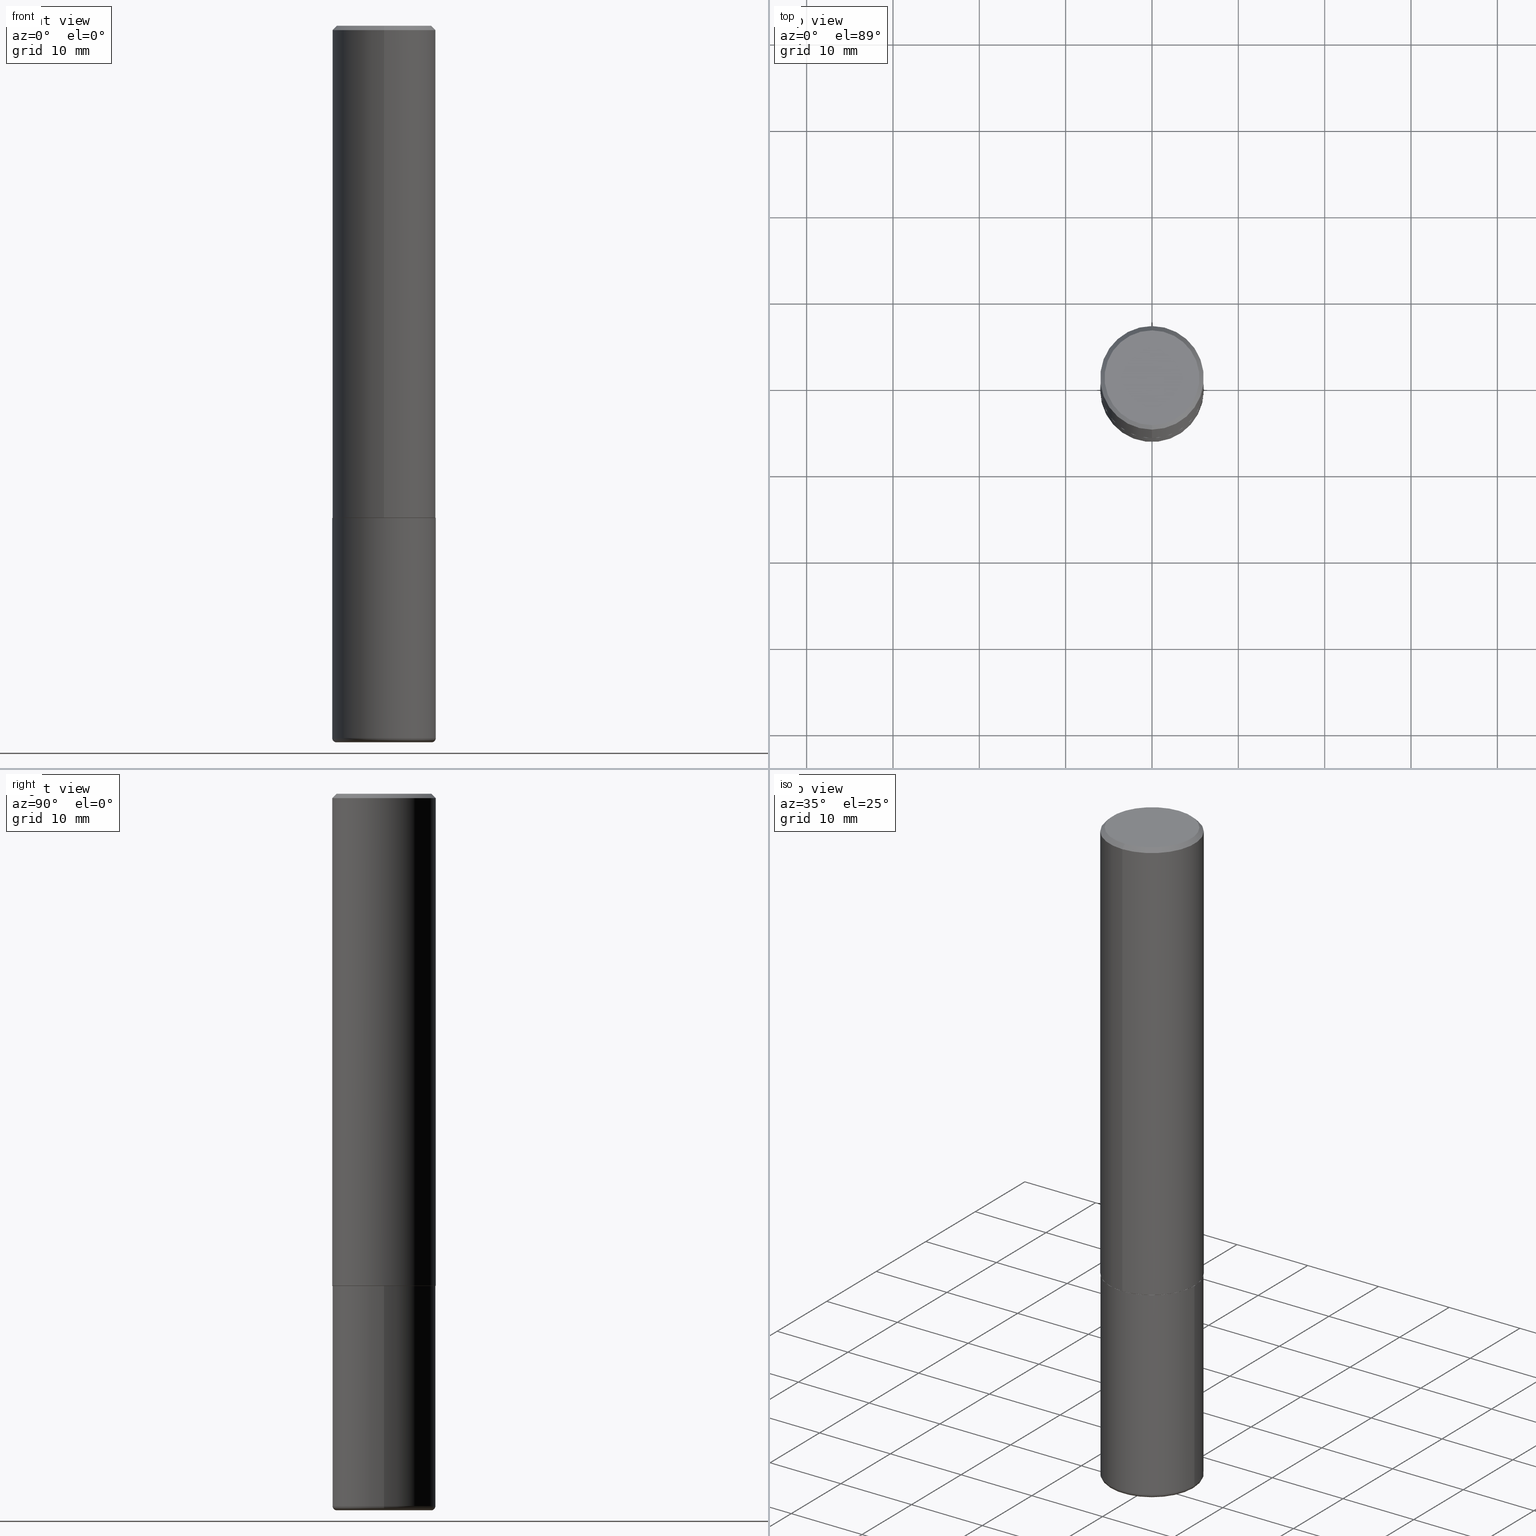
[diagram: canonical four-view strip — front | top / right | iso, engineering-drawing reading convention]
A machine part, canonical four-view strip (front | top / right | iso — engineering-drawing reading convention). The complete STEP part file that produces these views, byte-faithful:
ISO-10303-21;
HEADER;
FILE_DESCRIPTION (( 'STEP AP203' ),
    '1' );
FILE_NAME ('46909.STEP',
    '2024-03-05T07:27:38',
    ( '' ),
    ( '' ),
    'SwSTEP 2.0',
    'SolidWorks 2023',
    '' );
FILE_SCHEMA (( 'CONFIG_CONTROL_DESIGN' ));
ENDSEC;

DATA;
#1 = ORIENTED_EDGE ( 'NONE', *, *, #309, .T. ) ;
#2 = ORIENTED_EDGE ( 'NONE', *, *, #5, .F. ) ;
#3 = AXIS2_PLACEMENT_3D ( 'NONE', #175, #43, #151 ) ;
#4 = VERTEX_POINT ( 'NONE', #67 ) ;
#5 = EDGE_CURVE ( 'NONE', #170, #102, #379, .T. ) ;
#6 = ORIENTED_EDGE ( 'NONE', *, *, #231, .F. ) ;
#7 = EDGE_LOOP ( 'NONE', ( #360, #172, #267, #169 ) ) ;
#8 = PRODUCT_RELATED_PRODUCT_CATEGORY ( 'detail', '', ( #232 ) ) ;
#9 = AXIS2_PLACEMENT_3D ( 'NONE', #150, #108, #176 ) ;
#10 = LINE ( 'NONE', #142, #301 ) ;
#11 = DIRECTION ( 'NONE',  ( -1.000000000000000000, 6.982962677686265922E-15, -4.876176775795935793E-29 ) ) ;
#12 = MECHANICAL_CONTEXT ( 'NONE', #114, 'mechanical' ) ;
#13 = CARTESIAN_POINT ( 'NONE',  ( 7.942882682489324976E-29, -1.134033138856253841E-14, -3.248000000000000220 ) ) ;
#14 = FACE_OUTER_BOUND ( 'NONE', #134, .T. ) ;
#15 = AXIS2_PLACEMENT_3D ( 'NONE', #242, #313, #16 ) ;
#16 = DIRECTION ( 'NONE',  ( 1.000000000000000000, -6.982962677686269077E-15, 0.000000000000000000 ) ) ;
#17 = PERSON_AND_ORGANIZATION_ROLE ( 'design_owner' ) ;
#18 = DIRECTION ( 'NONE',  ( -6.982962677686265922E-15, -1.000000000000000000, 3.484849272499618535E-15 ) ) ;
#19 = CARTESIAN_POINT ( 'NONE',  ( 1.671196514507810409E-15, 0.2351999999999921653, -2.244100000000000872 ) ) ;
#20 = VECTOR ( 'NONE', #120, 39.37007874015748143 ) ;
#21 = APPROVAL_PERSON_ORGANIZATION ( #279, #31, #247 ) ;
#22 = DATE_TIME_ROLE ( 'classification_date' ) ;
#23 = CARTESIAN_POINT ( 'NONE',  ( 5.495819205382747907E-29, -7.816865403143895871E-15, -2.243100000000000094 ) ) ;
#24 = DIRECTION ( 'NONE',  ( 1.000000000000000000, -6.982962677686265133E-15, 0.000000000000000000 ) ) ;
#25 = PERSON_AND_ORGANIZATION ( #218, #190 ) ;
#26 = CIRCLE ( 'NONE', #327, 0.2361999999999999933 ) ;
#27 = PERSON_AND_ORGANIZATION_ROLE ( 'creator' ) ;
#28 = ORIENTED_EDGE ( 'NONE', *, *, #382, .F. ) ;
#29 = EDGE_CURVE ( 'NONE', #68, #139, #157, .T. ) ;
#30 = ORIENTED_EDGE ( 'NONE', *, *, #382, .T. ) ;
#31 = APPROVAL ( #409, 'UNSPECIFIED' ) ;
#32 = ORIENTED_EDGE ( 'NONE', *, *, #45, .F. ) ;
#33 = ORIENTED_EDGE ( 'NONE', *, *, #295, .T. ) ;
#34 = EDGE_CURVE ( 'NONE', #139, #416, #203, .T. ) ;
#35 = CARTESIAN_POINT ( 'NONE',  ( -0.2164999999999999980, -9.802006365641922115E-15, -3.248000000000000220 ) ) ;
#36 = DIRECTION ( 'NONE',  ( -6.982962677686265922E-15, -1.000000000000000000, 3.484849272499618930E-15 ) ) ;
#37 = CARTESIAN_POINT ( 'NONE',  ( -1.620449627073635276E-15, -0.2362000000000001043, -0.01999999999999925449 ) ) ;
#38 = AXIS2_PLACEMENT_3D ( 'NONE', #320, #154, #159 ) ;
#39 = DIRECTION ( 'NONE',  ( -2.445468806185136597E-29, 3.491481338843145583E-15, 1.000000000000000000 ) ) ;
#40 = EDGE_CURVE ( 'NONE', #68, #140, #417, .T. ) ;
#41 = CARTESIAN_POINT ( 'NONE',  ( 7.942882682489324976E-29, -1.134033138856253841E-14, -3.248000000000000220 ) ) ;
#42 = DIRECTION ( 'NONE',  ( -4.937700262165812586E-15, -0.7071067811867262076, 0.7071067811863689379 ) ) ;
#43 = DIRECTION ( 'NONE',  ( -2.450099953360415403E-29, 3.484849272499618930E-15, 1.000000000000000000 ) ) ;
#44 = DIRECTION ( 'NONE',  ( -2.450099953360415403E-29, 3.484849272499618930E-15, 1.000000000000000000 ) ) ;
#45 = EDGE_CURVE ( 'NONE', #64, #197, #113, .T. ) ;
#46 = CARTESIAN_POINT ( 'NONE',  ( -0.2361999999999999933, 1.678301941865356591E-15, -1.161852468318208757E-29 ) ) ;
#47 = AXIS2_PLACEMENT_3D ( 'NONE', #315, #123, #252 ) ;
#48 = VECTOR ( 'NONE', #177, 39.37007874015748143 ) ;
#49 = PERSON_AND_ORGANIZATION ( #218, #190 ) ;
#50 = EDGE_CURVE ( 'NONE', #336, #170, #146, .T. ) ;
#51 = CYLINDRICAL_SURFACE ( 'NONE', #55, 0.2361999999999999933 ) ;
#52 = DIRECTION ( 'NONE',  ( 1.000000000000000000, -6.982962677686266711E-15, 4.876176775795936353E-29 ) ) ;
#53 = ADVANCED_FACE ( 'NONE', ( #204 ), #149, .T. ) ;
#54 = DIRECTION ( 'NONE',  ( 2.450099953360414843E-29, -3.484849272499618930E-15, -1.000000000000000000 ) ) ;
#55 = AXIS2_PLACEMENT_3D ( 'NONE', #219, #349, #217 ) ;
#56 = APPROVAL ( #318, 'UNSPECIFIED' ) ;
#57 = COORDINATED_UNIVERSAL_TIME_OFFSET ( 5, 0, .BEHIND. ) ;
#58 = CARTESIAN_POINT ( 'NONE',  ( -2.474856915300181060E-45, 3.520061828088122209E-31, 1.010104470189393763E-16 ) ) ;
#59 = CALENDAR_DATE ( 2024, 5, 3 ) ;
#60 = ADVANCED_FACE ( 'NONE', ( #370 ), #82, .T. ) ;
#61 = ORIENTED_EDGE ( 'NONE', *, *, #40, .T. ) ;
#62 = CIRCLE ( 'NONE', #121, 0.2351999999999999924 ) ;
#63 = ORIENTED_EDGE ( 'NONE', *, *, #110, .T. ) ;
#64 = VERTEX_POINT ( 'NONE', #408 ) ;
#65 = DIRECTION ( 'NONE',  ( -2.450099953360415403E-29, 3.484849272499618930E-15, 1.000000000000000000 ) ) ;
#66 = AXIS2_PLACEMENT_3D ( 'NONE', #215, #54, #415 ) ;
#67 = CARTESIAN_POINT ( 'NONE',  ( 0.2362000000000000766, -1.298970717303203651E-14, -3.248000000000000220 ) ) ;
#68 = VERTEX_POINT ( 'NONE', #209 ) ;
#69 = DIRECTION ( 'NONE',  ( -2.450099953360415403E-29, 3.484849272499618930E-15, 1.000000000000000000 ) ) ;
#70 = FACE_OUTER_BOUND ( 'NONE', #229, .T. ) ;
#71 = AXIS2_PLACEMENT_3D ( 'NONE', #307, #44, #300 ) ;
#72 = CC_DESIGN_SECURITY_CLASSIFICATION ( #364, ( #291 ) ) ;
#73 = DIRECTION ( 'NONE',  ( 2.450099953360415403E-29, -3.484849272499618930E-15, -1.000000000000000000 ) ) ;
#74 = CARTESIAN_POINT ( 'NONE',  ( 5.487876547960065873E-29, -7.835233272497903917E-15, -2.244100000000000428 ) ) ;
#75 = CARTESIAN_POINT ( 'NONE',  ( -0.2362000000000000766, -9.662029446697182017E-15, -3.248000000000000220 ) ) ;
#76 = EDGE_CURVE ( 'NONE', #198, #225, #290, .T. ) ;
#77 =( NAMED_UNIT ( * ) PLANE_ANGLE_UNIT ( ) SI_UNIT ( $, .RADIAN. ) );
#78 = CARTESIAN_POINT ( 'NONE',  ( 7.991058417971172834E-29, -1.140911357093774960E-14, -3.267700000000000937 ) ) ;
#79 = DIRECTION ( 'NONE',  ( 0.000000000000000000, 0.000000000000000000, 1.000000000000000000 ) ) ;
#80 = CLOSED_SHELL ( 'NONE', ( #205, #321, #132, #292, #53, #277 ) ) ;
#81 = CARTESIAN_POINT ( 'NONE',  ( 1.579546157692633424E-15, 0.2161999999999999478, -6.524139656954780766E-16 ) ) ;
#82 = CONICAL_SURFACE ( 'NONE', #226, 0.2362000000000000210, 0.7853981633974461696 ) ;
#83 = CALENDAR_DATE ( 2024, 5, 3 ) ;
#84 = CYLINDRICAL_SURFACE ( 'NONE', #105, 0.2362000000000001598 ) ;
#85 = FACE_OUTER_BOUND ( 'NONE', #164, .T. ) ;
#86 = ORIENTED_EDGE ( 'NONE', *, *, #372, .F. ) ;
#87 = APPROVAL_DATE_TIME ( #194, #31 ) ;
#88 = DIRECTION ( 'NONE',  ( -2.445468806185136597E-29, 3.491481338843145583E-15, 1.000000000000000000 ) ) ;
#89 = VECTOR ( 'NONE', #304, 39.37007874015748143 ) ;
#90 = APPROVAL_PERSON_ORGANIZATION ( #91, #56, #191 ) ;
#91 = PERSON_AND_ORGANIZATION ( #218, #190 ) ;
#92 = DIRECTION ( 'NONE',  ( -2.450099953360415403E-29, 3.484849272499618930E-15, 1.000000000000000000 ) ) ;
#93 = ORIENTED_EDGE ( 'NONE', *, *, #5, .T. ) ;
#94 = EDGE_CURVE ( 'NONE', #4, #139, #26, .T. ) ;
#95 = ORIENTED_EDGE ( 'NONE', *, *, #372, .T. ) ;
#96 = PERSON_AND_ORGANIZATION_ROLE ( 'creator' ) ;
#97 = EDGE_LOOP ( 'NONE', ( #299, #263 ) ) ;
#98 = AXIS2_PLACEMENT_3D ( 'NONE', #74, #143, #148 ) ;
#99 = ADVANCED_FACE ( 'NONE', ( #278 ), #117, .F. ) ;
#100 = ORIENTED_EDGE ( 'NONE', *, *, #94, .F. ) ;
#101 = MANIFOLD_SOLID_BREP ( 'Body-Move/Copy2[1]', #80 ) ;
#102 = VERTEX_POINT ( 'NONE', #368 ) ;
#103 = MANIFOLD_SOLID_BREP ( 'Body-Move/Copy2[2]', #326 ) ;
#104 = ORIENTED_EDGE ( 'NONE', *, *, #40, .F. ) ;
#105 = AXIS2_PLACEMENT_3D ( 'NONE', #351, #92, #410 ) ;
#106 = LOCAL_TIME ( 2, 27, 38.00000000000000000, #124 ) ;
#107 = ORIENTED_EDGE ( 'NONE', *, *, #160, .F. ) ;
#108 = DIRECTION ( 'NONE',  ( 2.450099953360415403E-29, -3.484849272499618930E-15, -1.000000000000000000 ) ) ;
#109 = CARTESIAN_POINT ( 'NONE',  ( 0.2164999999999999980, -1.285214280828161572E-14, -3.248000000000000220 ) ) ;
#110 = EDGE_CURVE ( 'NONE', #416, #297, #386, .T. ) ;
#111 = CARTESIAN_POINT ( 'NONE',  ( 4.900199906720849654E-31, -6.969698544999262955E-17, -0.02000000000000007674 ) ) ;
#112 = CARTESIAN_POINT ( 'NONE',  ( 0.2361999999999999933, -1.649375784469496131E-15, 1.151752954443000088E-29 ) ) ;
#113 = CIRCLE ( 'NONE', #141, 0.2362000000000000210 ) ;
#114 = APPLICATION_CONTEXT ( 'configuration controlled 3d designs of mechanical parts and assemblies' ) ;
#115 = DIRECTION ( 'NONE',  ( 2.438088387897960049E-29, -3.491481338843145188E-15, -1.000000000000000000 ) ) ;
#116 = LENGTH_MEASURE_WITH_UNIT ( LENGTH_MEASURE( 0.02539999999999999897 ), #401 );
#117 = PLANE ( 'NONE',  #200 ) ;
#118 = ADVANCED_FACE ( 'NONE', ( #14 ), #241, .T. ) ;
#119 = CARTESIAN_POINT ( 'NONE',  ( 4.900199906720849654E-31, -6.969698544999262955E-17, -0.02000000000000007674 ) ) ;
#120 = DIRECTION ( 'NONE',  ( 5.024295867789349022E-15, 0.7071067811867310926, 0.7071067811863640529 ) ) ;
#121 = AXIS2_PLACEMENT_3D ( 'NONE', #254, #283, #412 ) ;
#122 = EDGE_LOOP ( 'NONE', ( #167, #359 ) ) ;
#123 = DIRECTION ( 'NONE',  ( -2.450099953360415403E-29, 3.484849272499618930E-15, 1.000000000000000000 ) ) ;
#124 = COORDINATED_UNIVERSAL_TIME_OFFSET ( 5, 0, .BEHIND. ) ;
#125 = CYLINDRICAL_SURFACE ( 'NONE', #174, 0.2361999999999999933 ) ;
#126 = ORIENTED_EDGE ( 'NONE', *, *, #262, .T. ) ;
#127 = DATE_AND_TIME ( #162, #106 ) ;
#128 = DIRECTION ( 'NONE',  ( -2.450099953360415403E-29, 3.484849272499618930E-15, 1.000000000000000000 ) ) ;
#129 = VECTOR ( 'NONE', #287, 39.37007874015748143 ) ;
#130 = EDGE_CURVE ( 'NONE', #198, #64, #10, .T. ) ;
#131 = CC_DESIGN_APPROVAL ( #31, ( #390 ) ) ;
#132 = ADVANCED_FACE ( 'NONE', ( #245 ), #272, .F. ) ;
#133 = APPROVAL_STATUS ( 'not_yet_approved' ) ;
#134 = EDGE_LOOP ( 'NONE', ( #138, #126, #363, #32 ) ) ;
#135 = ORIENTED_EDGE ( 'NONE', *, *, #228, .T. ) ;
#136 = VECTOR ( 'NONE', #42, 39.37007874015748143 ) ;
#137 = CC_DESIGN_PERSON_AND_ORGANIZATION_ASSIGNMENT ( #49, #17, ( #232 ) ) ;
#138 = ORIENTED_EDGE ( 'NONE', *, *, #309, .F. ) ;
#139 = VERTEX_POINT ( 'NONE', #75 ) ;
#140 = VERTEX_POINT ( 'NONE', #212 ) ;
#141 = AXIS2_PLACEMENT_3D ( 'NONE', #111, #69, #402 ) ;
#142 = CARTESIAN_POINT ( 'NONE',  ( 1.649375784469496722E-15, 0.2361999999999999655, -0.02000000000000090247 ) ) ;
#143 = DIRECTION ( 'NONE',  ( -2.445468806185136597E-29, 3.491481338843145583E-15, 1.000000000000000000 ) ) ;
#144 = DIRECTION ( 'NONE',  ( -2.445468806185136597E-29, 3.491481338843145583E-15, 1.000000000000000000 ) ) ;
#145 = CARTESIAN_POINT ( 'NONE',  ( -1.649375784469497117E-15, -0.2362000000000001598, 8.231213981644106002E-16 ) ) ;
#146 = LINE ( 'NONE', #375, #136 ) ;
#147 = UNCERTAINTY_MEASURE_WITH_UNIT (LENGTH_MEASURE( 1.000000000000000082E-05 ), #303, 'distance_accuracy_value', 'NONE');
#148 = DIRECTION ( 'NONE',  ( 1.000000000000000000, -6.982962677686269077E-15, 0.000000000000000000 ) ) ;
#149 = TOROIDAL_SURFACE ( 'NONE', #380, 0.2164999999999999980, 0.01970000000000016877 ) ;
#150 = CARTESIAN_POINT ( 'NONE',  ( 4.900199906720849654E-31, -6.969698544999262955E-17, -0.02000000000000007674 ) ) ;
#151 = DIRECTION ( 'NONE',  ( -6.982962677686265133E-15, -1.000000000000000000, 3.484499991918703113E-15 ) ) ;
#152 = DIRECTION ( 'NONE',  ( 4.937700262164536998E-15, 0.7071067811865435759, -0.7071067811865514585 ) ) ;
#153 = APPLICATION_PROTOCOL_DEFINITION ( 'international standard', 'config_control_design', 1994, #329 ) ;
#154 = DIRECTION ( 'NONE',  ( 2.438088387897960049E-29, -3.491481338843145188E-15, -1.000000000000000000 ) ) ;
#155 = ORIENTED_EDGE ( 'NONE', *, *, #50, .F. ) ;
#156 = FACE_OUTER_BOUND ( 'NONE', #357, .T. ) ;
#157 = CIRCLE ( 'NONE', #371, 0.01970000000000016877 ) ;
#158 = PERSON_AND_ORGANIZATION ( #218, #190 ) ;
#159 = DIRECTION ( 'NONE',  ( -1.000000000000000000, 6.982962677686265922E-15, -4.876176775795935793E-29 ) ) ;
#160 = EDGE_CURVE ( 'NONE', #140, #68, #248, .T. ) ;
#161 = CARTESIAN_POINT ( 'NONE',  ( 1.678301941865357577E-15, 0.2362000000000001598, -8.231213981644106002E-16 ) ) ;
#162 = CALENDAR_DATE ( 2024, 5, 3 ) ;
#163 = CC_DESIGN_PERSON_AND_ORGANIZATION_ASSIGNMENT ( #284, #96, ( #291 ) ) ;
#164 = EDGE_LOOP ( 'NONE', ( #93, #1, #86, #237 ) ) ;
#165 = CIRCLE ( 'NONE', #188, 0.2351999999999999924 ) ;
#166 = SECURITY_CLASSIFICATION_LEVEL ( 'unclassified' ) ;
#167 = ORIENTED_EDGE ( 'NONE', *, *, #228, .F. ) ;
#168 = ORIENTED_EDGE ( 'NONE', *, *, #130, .F. ) ;
#169 = ORIENTED_EDGE ( 'NONE', *, *, #45, .T. ) ;
#170 = VERTEX_POINT ( 'NONE', #238 ) ;
#171 = ADVANCED_FACE ( 'NONE', ( #400 ), #221, .T. ) ;
#172 = ORIENTED_EDGE ( 'NONE', *, *, #76, .F. ) ;
#173 = DIRECTION ( 'NONE',  ( 6.982962677686265922E-15, 1.000000000000000000, -3.487819265831411350E-15 ) ) ;
#174 = AXIS2_PLACEMENT_3D ( 'NONE', #385, #388, #52 ) ;
#175 = CARTESIAN_POINT ( 'NONE',  ( 5.498269305336108440E-29, -7.820350252416394661E-15, -2.244099999999999984 ) ) ;
#176 = DIRECTION ( 'NONE',  ( 6.982962677686265922E-15, 1.000000000000000000, -3.487819265831411350E-15 ) ) ;
#177 = DIRECTION ( 'NONE',  ( -2.445468806185136877E-29, 3.491481338843145188E-15, 1.000000000000000000 ) ) ;
#178 = CARTESIAN_POINT ( 'NONE',  ( -2.474856915300181060E-45, 3.520061828088122209E-31, 1.010104470189393763E-16 ) ) ;
#179 = DIRECTION ( 'NONE',  ( -6.982962677686266711E-15, -1.000000000000000000, 3.491481338843145583E-15 ) ) ;
#180 = CARTESIAN_POINT ( 'NONE',  ( 7.991058417971172834E-29, -1.140911357093774960E-14, -3.267700000000000937 ) ) ;
#181 = AXIS2_PLACEMENT_3D ( 'NONE', #23, #413, #189 ) ;
#182 = DIRECTION ( 'NONE',  ( -2.450099953360414843E-29, 3.484849272499618930E-15, 1.000000000000000000 ) ) ;
#183 =( NAMED_UNIT ( * ) SI_UNIT ( $, .STERADIAN. ) SOLID_ANGLE_UNIT ( ) );
#184 = DIRECTION ( 'NONE',  ( -2.450099953360415403E-29, 3.484849272499618930E-15, 1.000000000000000000 ) ) ;
#185 = ADVANCED_FACE ( 'NONE', ( #274 ), #240, .T. ) ;
#186 = DATE_AND_TIME ( #324, #227 ) ;
#187 = LINE ( 'NONE', #161, #129 ) ;
#188 = AXIS2_PLACEMENT_3D ( 'NONE', #316, #128, #258 ) ;
#189 = DIRECTION ( 'NONE',  ( -6.982962677686265922E-15, -1.000000000000000000, 3.469747663417772663E-15 ) ) ;
#190 = ORGANIZATION ( 'UNSPECIFIED', 'UNSPECIFIED', '' ) ;
#191 = APPROVAL_ROLE ( '' ) ;
#192 = PLANE ( 'NONE',  #38 ) ;
#193 = CC_DESIGN_PERSON_AND_ORGANIZATION_ASSIGNMENT ( #325, #251, ( #291 ) ) ;
#194 = DATE_AND_TIME ( #83, #249 ) ;
#195 = AXIS2_PLACEMENT_3D ( 'NONE', #361, #65, #199 ) ;
#196 = AXIS2_PLACEMENT_3D ( 'NONE', #180, #144, #310 ) ;
#197 = VERTEX_POINT ( 'NONE', #285 ) ;
#198 = VERTEX_POINT ( 'NONE', #81 ) ;
#199 = DIRECTION ( 'NONE',  ( -6.982962677686265922E-15, -1.000000000000000000, 3.469747663417772663E-15 ) ) ;
#200 = AXIS2_PLACEMENT_3D ( 'NONE', #275, #182, #36 ) ;
#201 = ADVANCED_FACE ( 'NONE', ( #354 ), #222, .F. ) ;
#202 = ORIENTED_EDGE ( 'NONE', *, *, #302, .T. ) ;
#203 = LINE ( 'NONE', #46, #89 ) ;
#204 = FACE_OUTER_BOUND ( 'NONE', #391, .T. ) ;
#205 = ADVANCED_FACE ( 'NONE', ( #156 ), #51, .T. ) ;
#206 = CIRCLE ( 'NONE', #235, 0.2362000000000000210 ) ;
#207 = DIRECTION ( 'NONE',  ( -2.445468806185136597E-29, 3.491481338843145583E-15, 1.000000000000000000 ) ) ;
#208 =( GEOMETRIC_REPRESENTATION_CONTEXT ( 3 ) GLOBAL_UNCERTAINTY_ASSIGNED_CONTEXT ( ( #147 ) ) GLOBAL_UNIT_ASSIGNED_CONTEXT ( ( #303, #77, #183 ) ) REPRESENTATION_CONTEXT ( 'NONE', 'WORKASPACE' ) );
#209 = CARTESIAN_POINT ( 'NONE',  ( -0.2164999999999999980, -9.766408997357155292E-15, -3.267700000000000937 ) ) ;
#210 = CC_DESIGN_DATE_AND_TIME_ASSIGNMENT ( #127, #414, ( #390 ) ) ;
#211 = FACE_OUTER_BOUND ( 'NONE', #394, .T. ) ;
#212 = CARTESIAN_POINT ( 'NONE',  ( 0.2164999999999999980, -1.292092499065682533E-14, -3.267700000000000937 ) ) ;
#213 = DIRECTION ( 'NONE',  ( -2.445468806185136597E-29, 3.491481338843145583E-15, 1.000000000000000000 ) ) ;
#214 = VECTOR ( 'NONE', #239, 39.37007874015748143 ) ;
#215 = CARTESIAN_POINT ( 'NONE',  ( 1.509716530915770323E-15, 0.2161999999999999478, -7.029191892049475614E-16 ) ) ;
#216 = CARTESIAN_POINT ( 'NONE',  ( -1.642392821791754502E-15, -0.2352000000000078195, -2.244099999999999095 ) ) ;
#217 = DIRECTION ( 'NONE',  ( 1.000000000000000000, -6.982962677686266711E-15, 4.876176775795936353E-29 ) ) ;
#218 = PERSON ( 'UNSPECIFIED', 'UNSPECIFIED', 'UNSPECIFIED', ('UNSPECIFIED'), ('UNSPECIFIED'), ('UNSPECIFIED') ) ;
#219 = CARTESIAN_POINT ( 'NONE',  ( 0.000000000000000000, 0.000000000000000000, 0.000000000000000000 ) ) ;
#220 = COORDINATED_UNIVERSAL_TIME_OFFSET ( 5, 0, .BEHIND. ) ;
#221 = CONICAL_SURFACE ( 'NONE', #9, 0.2362000000000000210, 0.7853981633974461696 ) ;
#222 = PLANE ( 'NONE',  #66 ) ;
#223 = FACE_OUTER_BOUND ( 'NONE', #330, .T. ) ;
#224 = EDGE_LOOP ( 'NONE', ( #293, #255, #265, #230 ) ) ;
#225 = VERTEX_POINT ( 'NONE', #384 ) ;
#226 = AXIS2_PLACEMENT_3D ( 'NONE', #119, #73, #173 ) ;
#227 = LOCAL_TIME ( 2, 27, 38.00000000000000000, #220 ) ;
#228 = EDGE_CURVE ( 'NONE', #336, #253, #62, .T. ) ;
#229 = EDGE_LOOP ( 'NONE', ( #135, #33, #2, #155 ) ) ;
#230 = ORIENTED_EDGE ( 'NONE', *, *, #262, .F. ) ;
#231 = EDGE_CURVE ( 'NONE', #225, #198, #358, .T. ) ;
#232 = PRODUCT ( '46909', '46909', '', ( #12 ) ) ;
#233 = EDGE_LOOP ( 'NONE', ( #288, #63 ) ) ;
#234 = AXIS2_PLACEMENT_3D ( 'NONE', #178, #276, #406 ) ;
#235 = AXIS2_PLACEMENT_3D ( 'NONE', #374, #244, #377 ) ;
#236 = CC_DESIGN_PERSON_AND_ORGANIZATION_ASSIGNMENT ( #25, #27, ( #390 ) ) ;
#237 = ORIENTED_EDGE ( 'NONE', *, *, #331, .F. ) ;
#238 = CARTESIAN_POINT ( 'NONE',  ( -1.649375784469443080E-15, -0.2362000000000081257, -2.243099999999999206 ) ) ;
#239 = DIRECTION ( 'NONE',  ( -2.450099953360415403E-29, 3.484849272499618930E-15, 1.000000000000000000 ) ) ;
#240 = CONICAL_SURFACE ( 'NONE', #47, 0.2351999999999999924, 0.7853981633977044075 ) ;
#241 = CYLINDRICAL_SURFACE ( 'NONE', #71, 0.2362000000000001598 ) ;
#242 = CARTESIAN_POINT ( 'NONE',  ( 5.487876547960065873E-29, -7.835233272497903917E-15, -2.244100000000000428 ) ) ;
#243 = ADVANCED_FACE ( 'NONE', ( #85 ), #84, .T. ) ;
#244 = DIRECTION ( 'NONE',  ( -2.450099953360415403E-29, 3.484849272499618930E-15, 1.000000000000000000 ) ) ;
#245 = FACE_OUTER_BOUND ( 'NONE', #233, .T. ) ;
#246 = CC_DESIGN_DATE_AND_TIME_ASSIGNMENT ( #186, #22, ( #364 ) ) ;
#247 = APPROVAL_ROLE ( '' ) ;
#248 = CIRCLE ( 'NONE', #196, 0.2164999999999999980 ) ;
#249 = LOCAL_TIME ( 2, 27, 38.00000000000000000, #381 ) ;
#250 = CARTESIAN_POINT ( 'NONE',  ( 0.2361999999999999933, -9.484609056967400443E-15, -2.244100000000000428 ) ) ;
#251 = PERSON_AND_ORGANIZATION_ROLE ( 'design_supplier' ) ;
#252 = DIRECTION ( 'NONE',  ( -6.982962677686265133E-15, -1.000000000000000000, 3.484499991918703113E-15 ) ) ;
#253 = VERTEX_POINT ( 'NONE', #352 ) ;
#254 = CARTESIAN_POINT ( 'NONE',  ( 5.498269305336108440E-29, -7.820350252416394661E-15, -2.244099999999999984 ) ) ;
#255 = ORIENTED_EDGE ( 'NONE', *, *, #312, .T. ) ;
#256 = SHAPE_DEFINITION_REPRESENTATION ( #397, #392 ) ;
#257 = AXIS2_PLACEMENT_3D ( 'NONE', #58, #184, #18 ) ;
#258 = DIRECTION ( 'NONE',  ( -6.982962677686265133E-15, -1.000000000000000000, 3.484499991918703113E-15 ) ) ;
#259 = ORIENTED_EDGE ( 'NONE', *, *, #29, .T. ) ;
#260 = CALENDAR_DATE ( 2024, 5, 3 ) ;
#261 = ORIENTED_EDGE ( 'NONE', *, *, #160, .T. ) ;
#262 = EDGE_CURVE ( 'NONE', #102, #170, #317, .T. ) ;
#263 = ORIENTED_EDGE ( 'NONE', *, *, #231, .T. ) ;
#264 = CONICAL_SURFACE ( 'NONE', #3, 0.2351999999999999924, 0.7853981633977044075 ) ;
#265 = ORIENTED_EDGE ( 'NONE', *, *, #50, .T. ) ;
#266 = LOCAL_TIME ( 2, 27, 38.00000000000000000, #411 ) ;
#267 = ORIENTED_EDGE ( 'NONE', *, *, #130, .T. ) ;
#268 = EDGE_LOOP ( 'NONE', ( #6, #395, #95, #168 ) ) ;
#269 = ORIENTED_EDGE ( 'NONE', *, *, #342, .F. ) ;
#270 = AXIS2_PLACEMENT_3D ( 'NONE', #109, #179, #308 ) ;
#271 = AXIS2_PLACEMENT_3D ( 'NONE', #407, #79, #314 ) ;
#272 = PLANE ( 'NONE',  #393 ) ;
#273 = DIRECTION ( 'NONE',  ( -4.851104656540953231E-15, -0.7071067811865484609, -0.7071067811865465735 ) ) ;
#274 = FACE_OUTER_BOUND ( 'NONE', #224, .T. ) ;
#275 = CARTESIAN_POINT ( 'NONE',  ( 5.498269305336108440E-29, -7.820350252416394661E-15, -2.244100000000000428 ) ) ;
#276 = DIRECTION ( 'NONE',  ( -2.450099953360415403E-29, 3.484849272499618930E-15, 1.000000000000000000 ) ) ;
#277 = ADVANCED_FACE ( 'NONE', ( #223 ), #192, .T. ) ;
#278 = FACE_OUTER_BOUND ( 'NONE', #122, .T. ) ;
#279 = PERSON_AND_ORGANIZATION ( #218, #190 ) ;
#280 = LINE ( 'NONE', #19, #20 ) ;
#281 = VECTOR ( 'NONE', #273, 39.37007874015748143 ) ;
#282 = CC_DESIGN_APPROVAL ( #404, ( #364 ) ) ;
#283 = DIRECTION ( 'NONE',  ( -2.450099953360415403E-29, 3.484849272499618930E-15, 1.000000000000000000 ) ) ;
#284 = PERSON_AND_ORGANIZATION ( #218, #190 ) ;
#285 = CARTESIAN_POINT ( 'NONE',  ( -1.620449627073635276E-15, -0.2362000000000001043, -0.01999999999999925449 ) ) ;
#286 = PERSON_AND_ORGANIZATION ( #218, #190 ) ;
#287 = DIRECTION ( 'NONE',  ( -2.450099953360415403E-29, 3.484849272499618930E-15, 1.000000000000000000 ) ) ;
#288 = ORIENTED_EDGE ( 'NONE', *, *, #337, .T. ) ;
#289 = DATE_AND_TIME ( #260, #266 ) ;
#290 = CIRCLE ( 'NONE', #234, 0.2161999999999999478 ) ;
#291 = PRODUCT_DEFINITION_FORMATION_WITH_SPECIFIED_SOURCE ( 'ANY', '', #232, .NOT_KNOWN. ) ;
#292 = ADVANCED_FACE ( 'NONE', ( #323 ), #125, .T. ) ;
#293 = ORIENTED_EDGE ( 'NONE', *, *, #295, .F. ) ;
#294 = ORIENTED_EDGE ( 'NONE', *, *, #34, .T. ) ;
#295 = EDGE_CURVE ( 'NONE', #253, #102, #280, .T. ) ;
#296 = CIRCLE ( 'NONE', #270, 0.01970000000000016877 ) ;
#297 = VERTEX_POINT ( 'NONE', #250 ) ;
#298 = ORIENTED_EDGE ( 'NONE', *, *, #342, .T. ) ;
#299 = ORIENTED_EDGE ( 'NONE', *, *, #76, .T. ) ;
#300 = DIRECTION ( 'NONE',  ( -6.982962677686265922E-15, -1.000000000000000000, 3.484849272499619324E-15 ) ) ;
#301 = VECTOR ( 'NONE', #152, 39.37007874015748143 ) ;
#302 = EDGE_CURVE ( 'NONE', #139, #4, #348, .T. ) ;
#303 =( CONVERSION_BASED_UNIT ( 'INCH', #116 ) LENGTH_UNIT ( ) NAMED_UNIT ( #305 ) );
#304 = DIRECTION ( 'NONE',  ( -2.445468806185136877E-29, 3.491481338843145188E-15, 1.000000000000000000 ) ) ;
#305 = DIMENSIONAL_EXPONENTS ( 1.000000000000000000, 0.000000000000000000, 0.000000000000000000, 0.000000000000000000, 0.000000000000000000, 0.000000000000000000, 0.000000000000000000 ) ;
#306 = APPLICATION_PROTOCOL_DEFINITION ( 'international standard', 'config_control_design', 1994, #114 ) ;
#307 = CARTESIAN_POINT ( 'NONE',  ( 0.000000000000000000, 0.000000000000000000, 0.000000000000000000 ) ) ;
#308 = DIRECTION ( 'NONE',  ( 1.000000000000000000, -6.982962677686268288E-15, 0.000000000000000000 ) ) ;
#309 = EDGE_CURVE ( 'NONE', #102, #64, #187, .T. ) ;
#310 = DIRECTION ( 'NONE',  ( 1.000000000000000000, -6.982962677686267499E-15, 0.000000000000000000 ) ) ;
#311 = AXIS2_PLACEMENT_3D ( 'NONE', #383, #88, #24 ) ;
#312 = EDGE_CURVE ( 'NONE', #253, #336, #165, .T. ) ;
#313 = DIRECTION ( 'NONE',  ( -2.445468806185136597E-29, 3.491481338843145583E-15, 1.000000000000000000 ) ) ;
#314 = DIRECTION ( 'NONE',  ( 1.000000000000000000, 0.000000000000000000, 0.000000000000000000 ) ) ;
#315 = CARTESIAN_POINT ( 'NONE',  ( 5.498269305336108440E-29, -7.820350252416394661E-15, -2.244099999999999984 ) ) ;
#316 = CARTESIAN_POINT ( 'NONE',  ( 5.498269305336108440E-29, -7.820350252416394661E-15, -2.244099999999999984 ) ) ;
#317 = CIRCLE ( 'NONE', #181, 0.2362000000000002986 ) ;
#318 = APPROVAL_STATUS ( 'not_yet_approved' ) ;
#319 = CC_DESIGN_APPROVAL ( #56, ( #291 ) ) ;
#320 = CARTESIAN_POINT ( 'NONE',  ( 2.232543125915028434E-29, -1.965563522349822115E-14, -3.267700000000000937 ) ) ;
#321 = ADVANCED_FACE ( 'NONE', ( #211 ), #362, .T. ) ;
#322 = PERSON_AND_ORGANIZATION_ROLE ( 'classification_officer' ) ;
#323 = FACE_OUTER_BOUND ( 'NONE', #332, .T. ) ;
#324 = CALENDAR_DATE ( 2024, 5, 3 ) ;
#325 = PERSON_AND_ORGANIZATION ( #218, #190 ) ;
#326 = CLOSED_SHELL ( 'NONE', ( #365, #243, #171, #60, #118, #185, #99, #201 ) ) ;
#327 = AXIS2_PLACEMENT_3D ( 'NONE', #338, #213, #347 ) ;
#328 = ORIENTED_EDGE ( 'NONE', *, *, #94, .T. ) ;
#329 = APPLICATION_CONTEXT ( 'configuration controlled 3d designs of mechanical parts and assemblies' ) ;
#330 = EDGE_LOOP ( 'NONE', ( #107, #104 ) ) ;
#331 = EDGE_CURVE ( 'NONE', #170, #197, #403, .T. ) ;
#332 = EDGE_LOOP ( 'NONE', ( #389, #202, #30, #334 ) ) ;
#333 = CIRCLE ( 'NONE', #98, 0.2361999999999999933 ) ;
#334 = ORIENTED_EDGE ( 'NONE', *, *, #110, .F. ) ;
#335 = LOCAL_TIME ( 2, 27, 38.00000000000000000, #57 ) ;
#336 = VERTEX_POINT ( 'NONE', #216 ) ;
#337 = EDGE_CURVE ( 'NONE', #297, #416, #333, .T. ) ;
#338 = CARTESIAN_POINT ( 'NONE',  ( 7.942882682489324976E-29, -1.134033138856253841E-14, -3.248000000000000220 ) ) ;
#339 = DIRECTION ( 'NONE',  ( 1.000000000000000000, -6.982962677686267499E-15, 0.000000000000000000 ) ) ;
#340 = LINE ( 'NONE', #112, #48 ) ;
#341 = DIRECTION ( 'NONE',  ( 7.105427357601001859E-15, 1.000000000000000000, -3.491481338843145583E-15 ) ) ;
#342 = EDGE_CURVE ( 'NONE', #140, #4, #296, .T. ) ;
#343 = DIRECTION ( 'NONE',  ( 1.000000000000000000, -6.982962677686267499E-15, 4.883557194083113462E-29 ) ) ;
#344 = DIRECTION ( 'NONE',  ( -1.000000000000000000, 7.105427357600963993E-15, 0.000000000000000000 ) ) ;
#345 = DESIGN_CONTEXT ( 'detailed design', #329, 'design' ) ;
#346 = CARTESIAN_POINT ( 'NONE',  ( -0.2361999999999999933, -7.909480388664863981E-15, -2.244100000000000428 ) ) ;
#347 = DIRECTION ( 'NONE',  ( 1.000000000000000000, -6.982962677686265133E-15, 0.000000000000000000 ) ) ;
#348 = CIRCLE ( 'NONE', #311, 0.2361999999999999933 ) ;
#349 = DIRECTION ( 'NONE',  ( -2.445468806185136597E-29, 3.491481338843145583E-15, 1.000000000000000000 ) ) ;
#350 = APPROVAL_DATE_TIME ( #418, #404 ) ;
#351 = CARTESIAN_POINT ( 'NONE',  ( 0.000000000000000000, 0.000000000000000000, 0.000000000000000000 ) ) ;
#352 = CARTESIAN_POINT ( 'NONE',  ( 1.674749228186612096E-15, 0.2351999999999921653, -2.244100000000000872 ) ) ;
#353 = AXIS2_PLACEMENT_3D ( 'NONE', #78, #378, #339 ) ;
#354 = FACE_OUTER_BOUND ( 'NONE', #97, .T. ) ;
#355 = EDGE_CURVE ( 'NONE', #225, #197, #369, .T. ) ;
#356 = APPROVAL_DATE_TIME ( #289, #56 ) ;
#357 = EDGE_LOOP ( 'NONE', ( #328, #294, #399, #28 ) ) ;
#358 = CIRCLE ( 'NONE', #257, 0.2161999999999999478 ) ;
#359 = ORIENTED_EDGE ( 'NONE', *, *, #312, .F. ) ;
#360 = ORIENTED_EDGE ( 'NONE', *, *, #355, .F. ) ;
#361 = CARTESIAN_POINT ( 'NONE',  ( 5.495819205382747907E-29, -7.816865403143895871E-15, -2.243100000000000094 ) ) ;
#362 = TOROIDAL_SURFACE ( 'NONE', #398, 0.2164999999999999980, 0.01970000000000016877 ) ;
#363 = ORIENTED_EDGE ( 'NONE', *, *, #331, .T. ) ;
#364 = SECURITY_CLASSIFICATION ( '', '', #166 ) ;
#365 = ADVANCED_FACE ( 'NONE', ( #70 ), #264, .T. ) ;
#366 = ORIENTED_EDGE ( 'NONE', *, *, #29, .F. ) ;
#367 = CC_DESIGN_PERSON_AND_ORGANIZATION_ASSIGNMENT ( #286, #322, ( #364 ) ) ;
#368 = CARTESIAN_POINT ( 'NONE',  ( 1.678301941865385779E-15, 0.2361999999999924715, -2.243100000000000982 ) ) ;
#369 = LINE ( 'NONE', #37, #281 ) ;
#370 = FACE_OUTER_BOUND ( 'NONE', #7, .T. ) ;
#371 = AXIS2_PLACEMENT_3D ( 'NONE', #35, #341, #344 ) ;
#372 = EDGE_CURVE ( 'NONE', #197, #64, #206, .T. ) ;
#373 = APPROVAL_PERSON_ORGANIZATION ( #158, #404, #387 ) ;
#374 = CARTESIAN_POINT ( 'NONE',  ( 4.900199906720849654E-31, -6.969698544999262955E-17, -0.02000000000000007674 ) ) ;
#375 = CARTESIAN_POINT ( 'NONE',  ( -1.642392821791754502E-15, -0.2352000000000078195, -2.244099999999999095 ) ) ;
#376 = DIRECTION ( 'NONE',  ( 1.000000000000000000, -6.982962677686267499E-15, 4.883557194083113462E-29 ) ) ;
#377 = DIRECTION ( 'NONE',  ( -6.982962677686265922E-15, -1.000000000000000000, 3.487819265831411350E-15 ) ) ;
#378 = DIRECTION ( 'NONE',  ( -2.445468806185136597E-29, 3.491481338843145583E-15, 1.000000000000000000 ) ) ;
#379 = CIRCLE ( 'NONE', #195, 0.2362000000000002986 ) ;
#380 = AXIS2_PLACEMENT_3D ( 'NONE', #13, #39, #376 ) ;
#381 = COORDINATED_UNIVERSAL_TIME_OFFSET ( 5, 0, .BEHIND. ) ;
#382 = EDGE_CURVE ( 'NONE', #4, #297, #340, .T. ) ;
#383 = CARTESIAN_POINT ( 'NONE',  ( 7.942882682489324976E-29, -1.134033138856253841E-14, -3.248000000000000220 ) ) ;
#384 = CARTESIAN_POINT ( 'NONE',  ( -1.551844647095919747E-15, -0.2161999999999999478, 8.544348597333568046E-16 ) ) ;
#385 = CARTESIAN_POINT ( 'NONE',  ( 0.000000000000000000, 0.000000000000000000, 0.000000000000000000 ) ) ;
#386 = CIRCLE ( 'NONE', #15, 0.2361999999999999933 ) ;
#387 = APPROVAL_ROLE ( '' ) ;
#388 = DIRECTION ( 'NONE',  ( -2.445468806185136597E-29, 3.491481338843145583E-15, 1.000000000000000000 ) ) ;
#389 = ORIENTED_EDGE ( 'NONE', *, *, #34, .F. ) ;
#390 = PRODUCT_DEFINITION ( 'UNKNOWN', '', #291, #345 ) ;
#391 = EDGE_LOOP ( 'NONE', ( #366, #61, #298, #396 ) ) ;
#392 = ADVANCED_BREP_SHAPE_REPRESENTATION ( '46909', ( #101, #103, #271 ), #208 ) ;
#393 = AXIS2_PLACEMENT_3D ( 'NONE', #405, #115, #11 ) ;
#394 = EDGE_LOOP ( 'NONE', ( #261, #259, #100, #269 ) ) ;
#395 = ORIENTED_EDGE ( 'NONE', *, *, #355, .T. ) ;
#396 = ORIENTED_EDGE ( 'NONE', *, *, #302, .F. ) ;
#397 = PRODUCT_DEFINITION_SHAPE ( 'NONE', 'NONE',  #390 ) ;
#398 = AXIS2_PLACEMENT_3D ( 'NONE', #41, #207, #343 ) ;
#399 = ORIENTED_EDGE ( 'NONE', *, *, #337, .F. ) ;
#400 = FACE_OUTER_BOUND ( 'NONE', #268, .T. ) ;
#401 =( LENGTH_UNIT ( ) NAMED_UNIT ( * ) SI_UNIT ( $, .METRE. ) );
#402 = DIRECTION ( 'NONE',  ( -6.982962677686265922E-15, -1.000000000000000000, 3.487819265831411350E-15 ) ) ;
#403 = LINE ( 'NONE', #145, #214 ) ;
#404 = APPROVAL ( #133, 'UNSPECIFIED' ) ;
#405 = CARTESIAN_POINT ( 'NONE',  ( 5.487876547960065873E-29, -7.835233272497903917E-15, -2.244100000000000428 ) ) ;
#406 = DIRECTION ( 'NONE',  ( -6.982962677686265922E-15, -1.000000000000000000, 3.484849272499618535E-15 ) ) ;
#407 = CARTESIAN_POINT ( 'NONE',  ( 0.000000000000000000, 0.000000000000000000, 0.000000000000000000 ) ) ;
#408 = CARTESIAN_POINT ( 'NONE',  ( 1.649375784469496722E-15, 0.2361999999999999655, -0.02000000000000090247 ) ) ;
#409 = APPROVAL_STATUS ( 'not_yet_approved' ) ;
#410 = DIRECTION ( 'NONE',  ( -6.982962677686265922E-15, -1.000000000000000000, 3.484849272499619324E-15 ) ) ;
#411 = COORDINATED_UNIVERSAL_TIME_OFFSET ( 5, 0, .BEHIND. ) ;
#412 = DIRECTION ( 'NONE',  ( -6.982962677686265133E-15, -1.000000000000000000, 3.484499991918703113E-15 ) ) ;
#413 = DIRECTION ( 'NONE',  ( -2.450099953360415403E-29, 3.484849272499618930E-15, 1.000000000000000000 ) ) ;
#414 = DATE_TIME_ROLE ( 'creation_date' ) ;
#415 = DIRECTION ( 'NONE',  ( 6.982962677686265922E-15, 1.000000000000000000, -3.484849272499618930E-15 ) ) ;
#416 = VERTEX_POINT ( 'NONE', #346 ) ;
#417 = CIRCLE ( 'NONE', #353, 0.2164999999999999980 ) ;
#418 = DATE_AND_TIME ( #59, #335 ) ;
ENDSEC;
END-ISO-10303-21;
